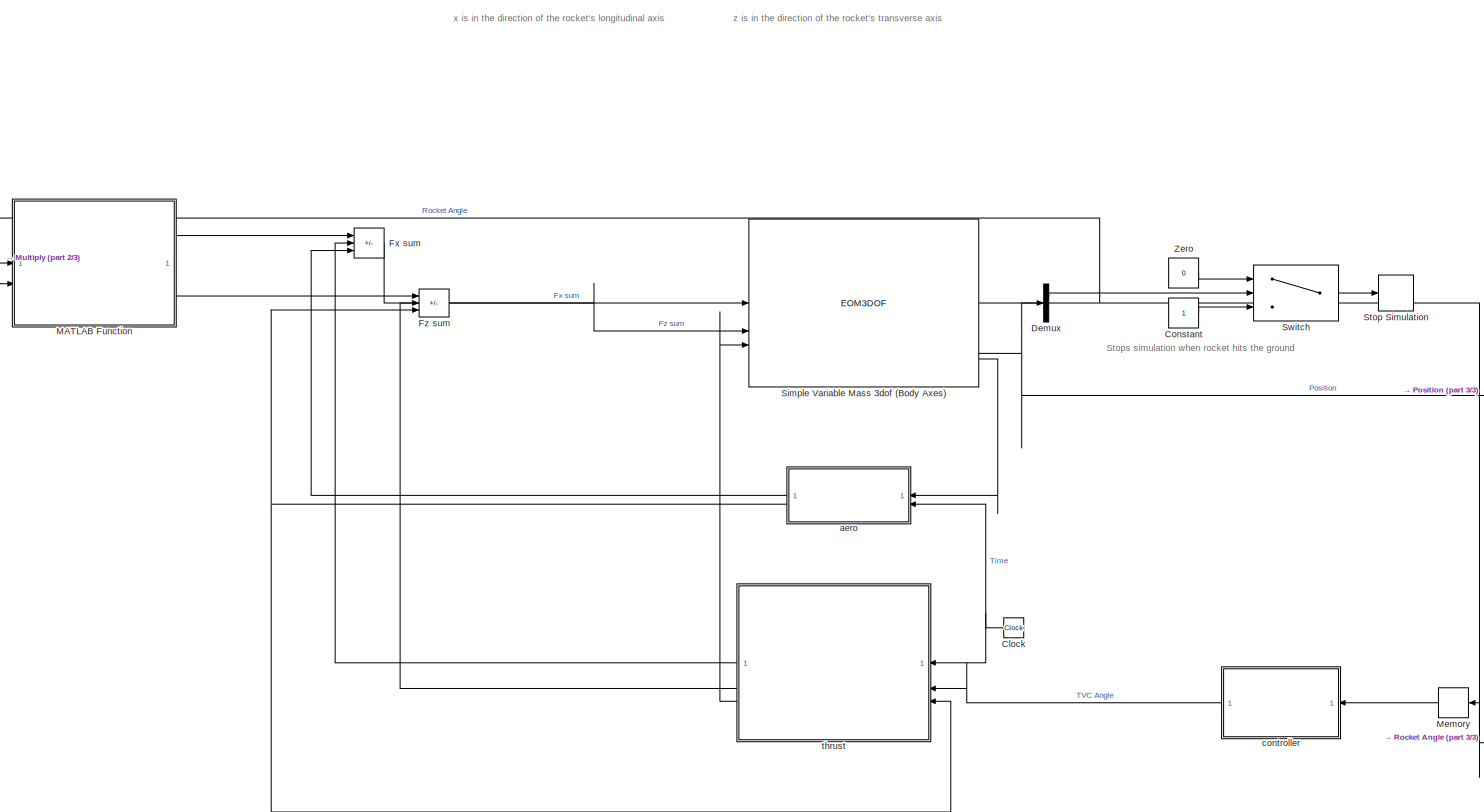
[diagram: root canvas - part 1/3, center side, full height]
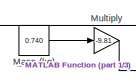
[diagram: root canvas - part 2/3, top left region]
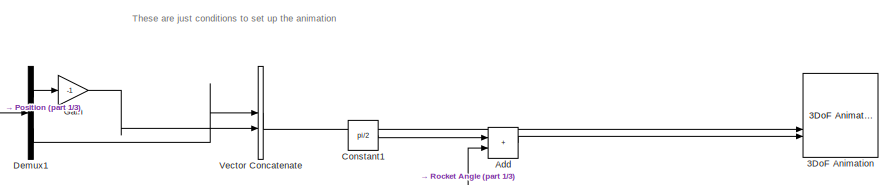
[diagram: root canvas - part 3/3, middle right region]
MODEL slx_08de67ce258d
KIND model
CONFIG AbsTol = auto
CONFIG EnableMultiTasking = off
CONFIG FixedStep = auto
CONFIG MaxStep = auto
CONFIG MinStep = auto
CONFIG RelTol = 1e-5
CONFIG SampleTimeConstraint = Unconstrained
CONFIG SolverName = VariableStepAuto
CONFIG StartTime = 0.0
CONFIG StopTime = 50
BLOCK [Reference] 3DoF Animation  REF=aerolibanim/3DoF Animation
  SourceBlock = aerolibanim/3DoF Animation
  SourceType = 3DoF_Animation
BLOCK [Sum] Add
  IconShape = rectangular
BLOCK [Clock] Clock
BLOCK [Constant] Constant
BLOCK [Constant] Constant1
  Value = pi/2
BLOCK [Demux] Demux
  Outputs = 2
BLOCK [Demux] Demux1
  Outputs = 2
BLOCK [Sum] Fx sum
  IconShape = rectangular
  Inputs = ++-
BLOCK [Sum] Fz sum
  IconShape = rectangular
  Inputs = ++-
BLOCK [Gain] Gain
  Gain = -1
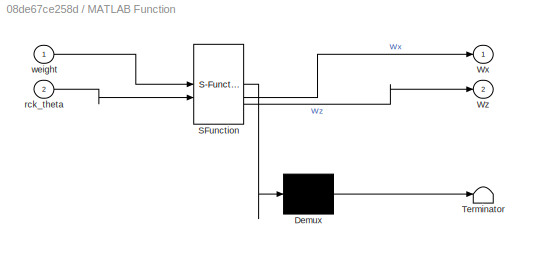
BLOCK [SubSystem] MATLAB Function
  ErrorFcn = Stateflow.Translate.translate
  PermitHierarchicalResolution = ExplicitOnly
  SFBlockType = MATLAB Function
  TreatAsAtomicUnit = on
BLOCK [Demux] MATLAB Function/ Demux 
  Outputs = 1
BLOCK [S-Function] MATLAB Function/ SFunction 
  EnableBusSupport = on
  FunctionName = sf_sfun
  PortCounts = [2 3]
  SFcnIsStateOwnerBlock = off
  SFunctionDeploymentMode = off
  Tag = Stateflow S-Function 4
BLOCK [Terminator] MATLAB Function/ Terminator 
BLOCK [Outport] MATLAB Function/Wx
BLOCK [Outport] MATLAB Function/Wz
  Port = 2
BLOCK [Inport] MATLAB Function/rck_theta
  Port = 2
BLOCK [Inport] MATLAB Function/weight
BLOCK [Constant] Mass (kg)
  Value = 0.740
BLOCK [Memory] Memory
BLOCK [Gain] Multiply
  Gain = -9.81
BLOCK [EOM3DOF] Simple Variable Mass 3dof (Body Axes)
  Iyy_e = 3.10
  Iyy_f = 3.22
  g = 0
  mass = 0.740
  mass_e = 0.690
  mass_f = 0.740
  mtype = Simple Variable
  pos_ini = [0.01 0]
  theta_ini = 0.1
  v_ini = 0
BLOCK [Stop] Stop Simulation
BLOCK [Switch] Switch
  Criteria = u2 > Threshold
  InputSameDT = off
  SaturateOnIntegerOverflow = off
BLOCK [Concatenate] Vector Concatenate
BLOCK [Constant] Zero
  OutDataTypeStr = Inherit: Inherit via back propagation
  Value = 0
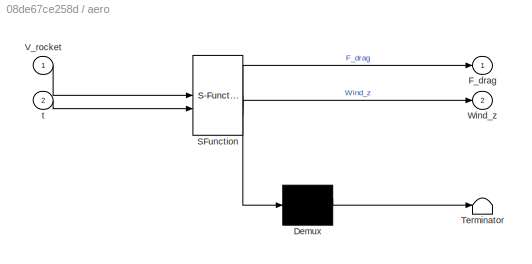
BLOCK [SubSystem] aero
  ErrorFcn = Stateflow.Translate.translate
  PermitHierarchicalResolution = ExplicitOnly
  SFBlockType = MATLAB Function
  TreatAsAtomicUnit = on
BLOCK [Demux] aero/ Demux 
  Outputs = 1
BLOCK [S-Function] aero/ SFunction 
  EnableBusSupport = on
  FunctionName = sf_sfun
  PortCounts = [2 3]
  SFcnIsStateOwnerBlock = off
  SFunctionDeploymentMode = off
  Tag = Stateflow S-Function 3
BLOCK [Terminator] aero/ Terminator 
BLOCK [Outport] aero/F_drag
BLOCK [Inport] aero/V_rocket
BLOCK [Outport] aero/Wind_z
  Port = 2
BLOCK [Inport] aero/t
  Port = 2
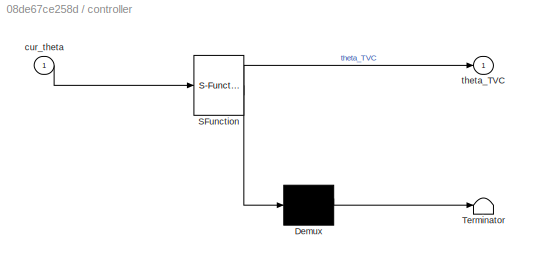
BLOCK [SubSystem] controller
  ErrorFcn = Stateflow.Translate.translate
  PermitHierarchicalResolution = ExplicitOnly
  RTWSystemCode = Reusable function
  SFBlockType = MATLAB Function
  TreatAsAtomicUnit = on
  TreatAsGroupedWhenPropagatingVariantConditions = off
BLOCK [Demux] controller/ Demux 
  Outputs = 1
BLOCK [S-Function] controller/ SFunction 
  EnableBusSupport = on
  FunctionName = sf_sfun
  PortCounts = [1 2]
  SFcnIsStateOwnerBlock = off
  SFunctionDeploymentMode = off
  Tag = Stateflow S-Function 1
BLOCK [Terminator] controller/ Terminator 
BLOCK [Inport] controller/cur_theta
BLOCK [Outport] controller/theta_TVC
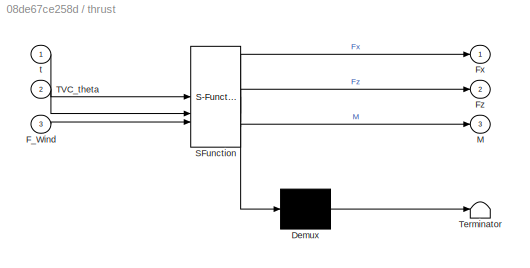
BLOCK [SubSystem] thrust
  ErrorFcn = Stateflow.Translate.translate
  PermitHierarchicalResolution = ExplicitOnly
  SFBlockType = MATLAB Function
  TreatAsAtomicUnit = on
BLOCK [Demux] thrust/ Demux 
  Outputs = 1
BLOCK [S-Function] thrust/ SFunction 
  EnableBusSupport = on
  FunctionName = sf_sfun
  PortCounts = [3 4]
  SFcnIsStateOwnerBlock = off
  SFunctionDeploymentMode = off
  Tag = Stateflow S-Function 2
BLOCK [Terminator] thrust/ Terminator 
BLOCK [Inport] thrust/F_Wind
  Port = 3
BLOCK [Outport] thrust/Fx
BLOCK [Outport] thrust/Fz
  Port = 2
BLOCK [Outport] thrust/M
  Port = 3
BLOCK [Inport] thrust/TVC_theta
  Port = 2
BLOCK [Inport] thrust/t
ANNOTATION (root): Stops simulation when rocket hits the ground
ANNOTATION (root): These are just conditions to set up the animation
ANNOTATION (root): x is in the direction of the rocket's longitudinal axis
ANNOTATION (root): z is in the direction of the rocket's transverse axis
LINE Add:1 -> 3DoF Animation:3
NET Clock:1 -> aero:2, thrust:1
LINE Constant1:1 -> Add:1
LINE Constant:1 -> Switch:3
LINE Demux1:1 -> Gain:1
LINE Demux1:2 -> Vector Concatenate:1
LINE Demux:1 -> Switch:2
LINE Fx sum:1 -> Simple Variable Mass 3dof (Body Axes):1
LINE Fz sum:1 -> Simple Variable Mass 3dof (Body Axes):2
LINE Gain:1 -> Vector Concatenate:2
LINE MATLAB Function:1 -> Fx sum:1
LINE MATLAB Function:2 -> Fz sum:1
LINE Mass (kg):1 -> Multiply:1
LINE Memory:1 -> controller:1
LINE Multiply:1 -> MATLAB Function:1
NET Simple Variable Mass 3dof (Body Axes):1 -> Add:2, MATLAB Function:2, Memory:1
NET Simple Variable Mass 3dof (Body Axes):4 -> Demux1:1, Demux:1
LINE Simple Variable Mass 3dof (Body Axes):5 -> aero:1
LINE Switch:1 -> Stop Simulation:1
LINE Vector Concatenate:1 -> 3DoF Animation:2
LINE Zero:1 -> Switch:1
LINE aero:1 -> Fx sum:3
NET aero:2 -> Fz sum:3, thrust:3
LINE controller:1 -> thrust:2
LINE thrust:1 -> Fx sum:2
LINE thrust:2 -> Fz sum:2
LINE thrust:3 -> Simple Variable Mass 3dof (Body Axes):3
note: NET lines group one-source signal fan-out (src -> all destinations, sorted); 1:1 wires keep LINE
CHART controller states=1 transitions=1
  STATE_LABEL 'eML_blk_kernel()'
  STATE_LABEL 'SCRIPT:\nfunction theta_TVC = fcn(cur_theta)   \n   % constants\n    theta_desired = 0;  \n    Kp = 4;  \n    Ki = 0.01;    \n    Kd = 0.3;\n    filter_tau = 1; \n    max_TVC_angle=deg2rad(15);\n\n    persistent integral_error prev_error prev_d;\n\n    if isempty(integral_error)\n        integral_error = 0;\n        prev_error = 0;\n        prev_d = 0;\n    end\n\n \n\n\n    current_error = theta_desired - cur_theta;\n...<+669ch>'
CHART thrust states=1 transitions=1
  STATE_LABEL 'eML_blk_kernel()'
  STATE_LABEL "SCRIPT:\nfunction [Fx, Fz, M] = fcn(t, TVC_theta, F_Wind)\n\n    persistent loadedData;\n    \n    %pitch is TVC angle\n    %rck_theta is rocket angle\n\n    if isempty(loadedData)\n        loadedData = load('F10ThrustCurve.mat');\n    end\n\n    thrust_interp = interp1(loadedData.F10ThrustCurve(:,1), loadedData.F10ThrustCurve(:,2), t);\n\n    burnout_time = 7.13;\n    if t < burnout_time\n        T = thrust_inte...<+318ch>"
CHART aero states=1 transitions=1
  STATE_LABEL 'eML_blk_kernel()'
  STATE_LABEL 'SCRIPT:\nfunction [F_drag,Wind_z] = drag(V_rocket,t)\n    rho = 1;    \n    C_D = 0.47;   \n    A = 0.04;      \n    Axial_A=0.1;\n    Axial_C_D=0.6;\n    \n    \n    %Wind (varying with time)\n    V_wind = sin(t); \n    \n    %Relative velocity \n    %(assuming wind is always acting perpendicular to x-axis)\n\n    V_eff_x = V_rocket(1);\n    V_eff_z = abs(V_rocket(2)) - abs(V_wind);\n\n    \n    %Drag force\n    F_d...<+276ch>'
CHART MATLAB Function states=1 transitions=1
  STATE_LABEL 'eML_blk_kernel()'
  STATE_LABEL 'SCRIPT:\nfunction [Wx,Wz] = fcn(weight,rck_theta)\n\nWx=weight*cos(rck_theta);\nWz=weight*sin(rck_theta);\n\n'
CHART  states=0 transitions=0
CHART  states=0 transitions=0
CHART  states=0 transitions=0
CHART  states=0 transitions=0
